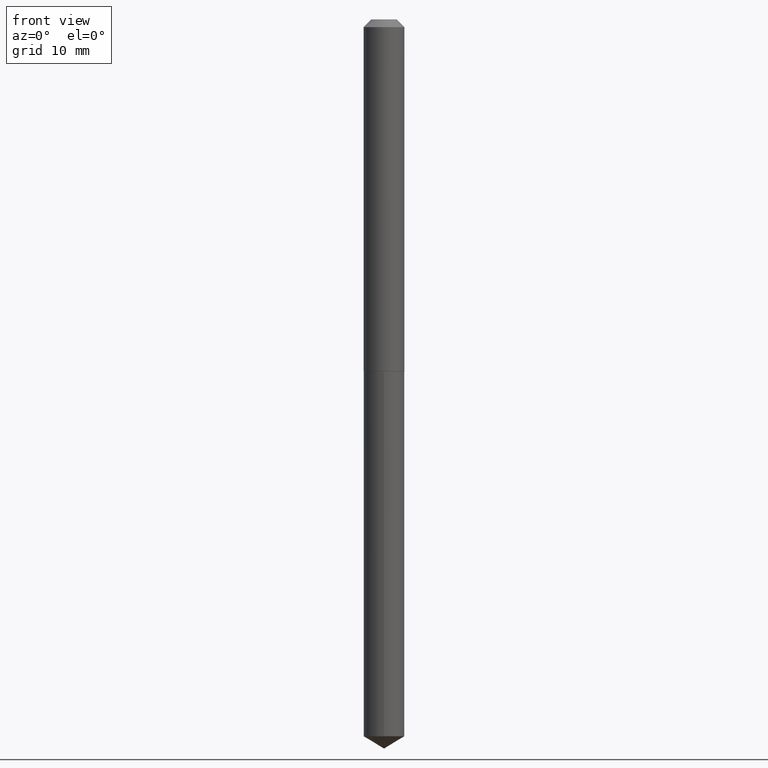
[diagram: clean part render]
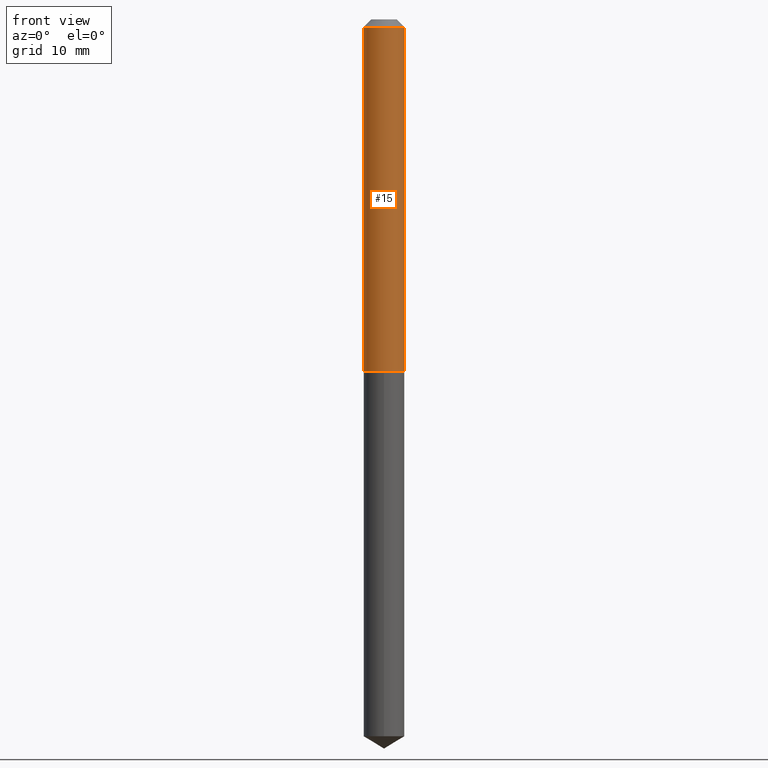
[diagram: same view with one face highlighted and labeled with its STEP entity id]
A machine part, front view. The second image highlights one B-rep face of the part: STEP entity #15.
In plain terms, the highlighted cylindrical surface (edge-blend (fillet) strip) has radius 2.1006 mm, axis along (-0, 0, 1).
Its self-contained STEP definition (entity closure, byte-faithful):
#9 = ORIENTED_EDGE ( 'NONE', *, *, #180, .T. ) ;
#15 = ADVANCED_FACE ( 'NONE', ( #49 ), #346, .T. ) ;
#23 = ORIENTED_EDGE ( 'NONE', *, *, #174, .T. ) ;
#37 = VERTEX_POINT ( 'NONE', #127 ) ;
#38 = LINE ( 'NONE', #66, #162 ) ;
#44 = EDGE_LOOP ( 'NONE', ( #343, #23, #9, #306 ) ) ;
#46 = CARTESIAN_POINT ( 'NONE',  ( 7.642090019328600035E-31, -1.091087918388489897E-16, -0.03125000000000020123 ) ) ;
#49 = FACE_OUTER_BOUND ( 'NONE', #44, .T. ) ;
#63 = AXIS2_PLACEMENT_3D ( 'NONE', #248, #220, #159 ) ;
#66 = CARTESIAN_POINT ( 'NONE',  ( 0.08270000000000007900, -5.774910134446548770E-16, 4.032598193583242774E-30 ) ) ;
#77 = CARTESIAN_POINT ( 'NONE',  ( 0.08270000000000014839, -5.552153625028367676E-15, -1.424799999999999844 ) ) ;
#117 = EDGE_CURVE ( 'NONE', #387, #37, #296, .T. ) ;
#121 = CARTESIAN_POINT ( 'NONE',  ( 3.484303955052581857E-29, -4.974662611583712996E-15, -1.424799999999999844 ) ) ;
#127 = CARTESIAN_POINT ( 'NONE',  ( -0.08269999999999999574, -1.954266859237676647E-15, -0.03125000000000020123 ) ) ;
#145 = AXIS2_PLACEMENT_3D ( 'NONE', #46, #210, #268 ) ;
#158 = DIRECTION ( 'NONE',  ( 1.000000000000000000, -6.982962677686260400E-15, 0.000000000000000000 ) ) ;
#159 = DIRECTION ( 'NONE',  ( 1.000000000000000000, -6.982962677686267499E-15, 4.876176775795935793E-29 ) ) ;
#162 = VECTOR ( 'NONE', #240, 39.37007874015748143 ) ;
#174 = EDGE_CURVE ( 'NONE', #387, #388, #360, .T. ) ;
#175 = CARTESIAN_POINT ( 'NONE',  ( 0.08269999999999999574, -6.865998052835032874E-16, -0.03125000000000020123 ) ) ;
#180 = EDGE_CURVE ( 'NONE', #388, #247, #38, .T. ) ;
#192 = CIRCLE ( 'NONE', #145, 0.08269999999999999574 ) ;
#210 = DIRECTION ( 'NONE',  ( -2.445468806185136597E-29, 3.491481338843145583E-15, 1.000000000000000000 ) ) ;
#220 = DIRECTION ( 'NONE',  ( -2.445468806185136597E-29, 3.491481338843145583E-15, 1.000000000000000000 ) ) ;
#240 = DIRECTION ( 'NONE',  ( -2.445468806185136877E-29, 3.491481338843145188E-15, 1.000000000000000000 ) ) ;
#241 = CARTESIAN_POINT ( 'NONE',  ( -0.08270000000000014839, -4.387043769110109384E-15, -1.424799999999999844 ) ) ;
#247 = VERTEX_POINT ( 'NONE', #175 ) ;
#248 = CARTESIAN_POINT ( 'NONE',  ( 0.000000000000000000, 0.000000000000000000, 0.000000000000000000 ) ) ;
#267 = EDGE_CURVE ( 'NONE', #37, #247, #192, .T. ) ;
#268 = DIRECTION ( 'NONE',  ( 1.000000000000000000, -6.982962677686267499E-15, 0.000000000000000000 ) ) ;
#296 = LINE ( 'NONE', #353, #321 ) ;
#306 = ORIENTED_EDGE ( 'NONE', *, *, #267, .F. ) ;
#318 = DIRECTION ( 'NONE',  ( -2.445468806185136877E-29, 3.491481338843145188E-15, 1.000000000000000000 ) ) ;
#321 = VECTOR ( 'NONE', #318, 39.37007874015748143 ) ;
#343 = ORIENTED_EDGE ( 'NONE', *, *, #117, .F. ) ;
#346 = CYLINDRICAL_SURFACE ( 'NONE', #63, 0.08270000000000007900 ) ;
#353 = CARTESIAN_POINT ( 'NONE',  ( -0.08270000000000007900, 5.876188424736034151E-16, -4.067959319640811108E-30 ) ) ;
#360 = CIRCLE ( 'NONE', #371, 0.08270000000000014839 ) ;
#364 = DIRECTION ( 'NONE',  ( -2.445468806185136597E-29, 3.491481338843145583E-15, 1.000000000000000000 ) ) ;
#371 = AXIS2_PLACEMENT_3D ( 'NONE', #121, #364, #158 ) ;
#387 = VERTEX_POINT ( 'NONE', #241 ) ;
#388 = VERTEX_POINT ( 'NONE', #77 ) ;